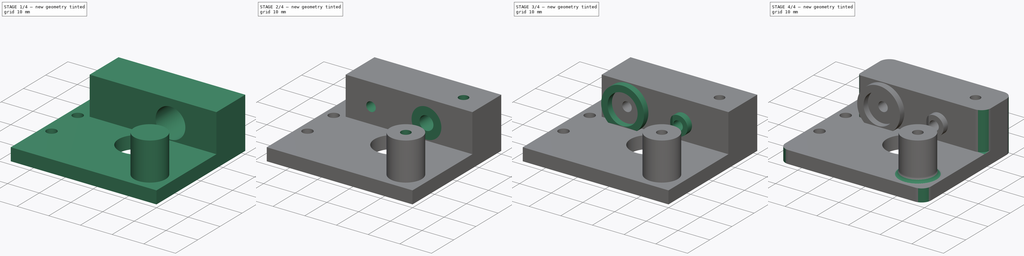
[diagram: build sequence overview — one tinted view per stage of 4, left to right]
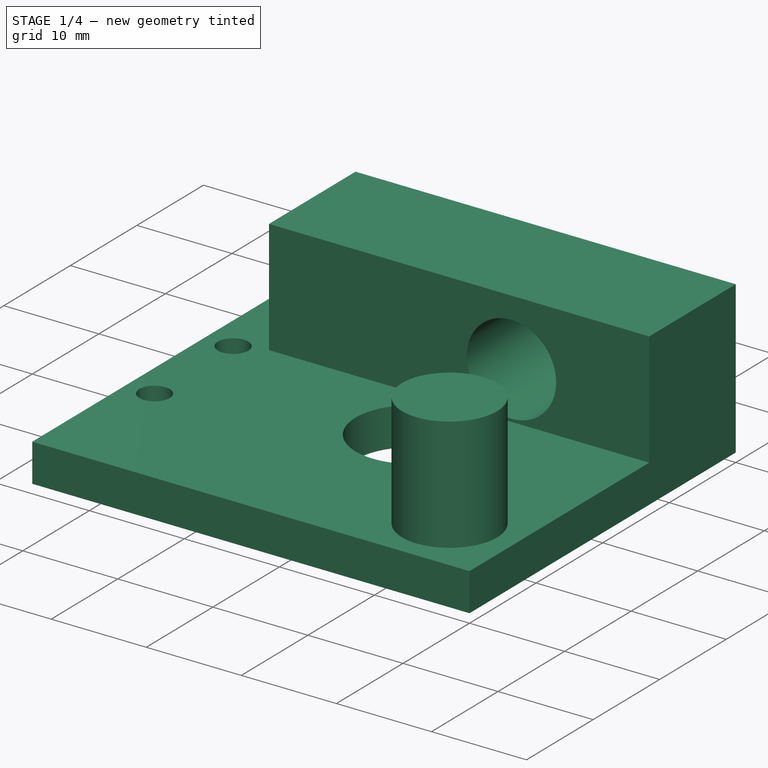
[diagram: stage 1 of 4 — iso view after this stage's code; geometry added in this stage tinted green]
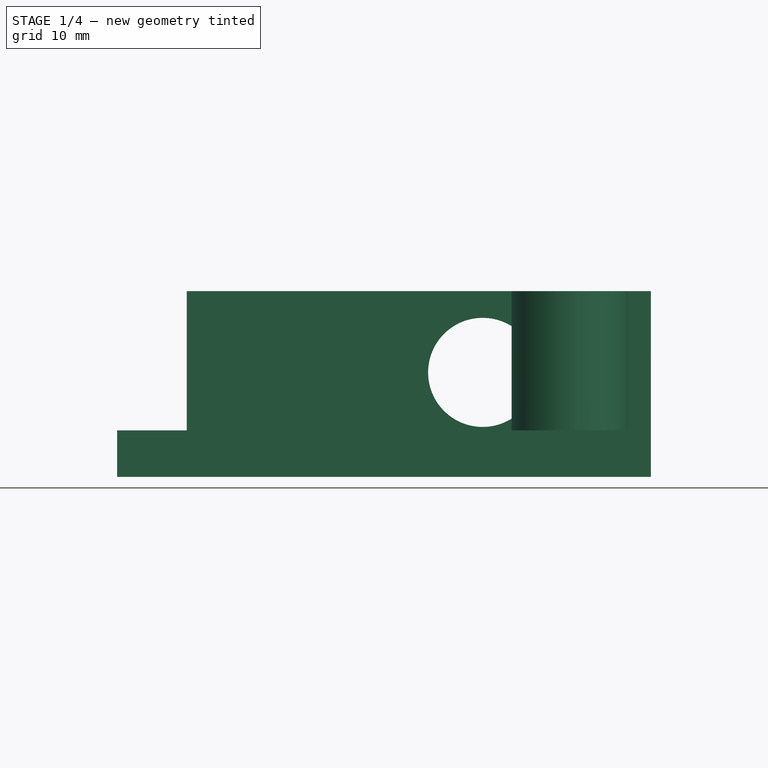
[diagram: stage 1 of 4 — front view after this stage's code; geometry added in this stage tinted green]
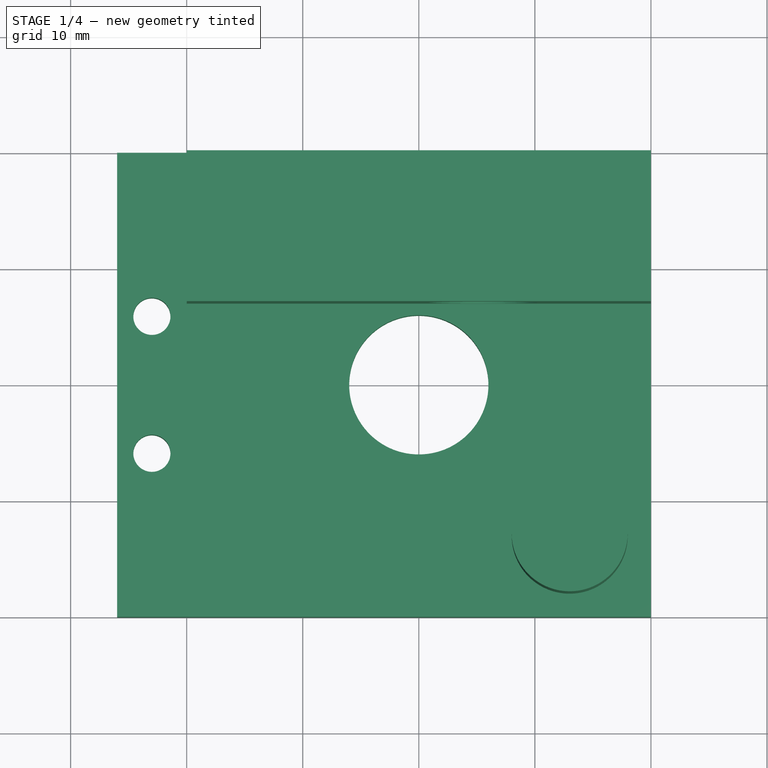
[diagram: stage 1 of 4 — top view after this stage's code; geometry added in this stage tinted green]
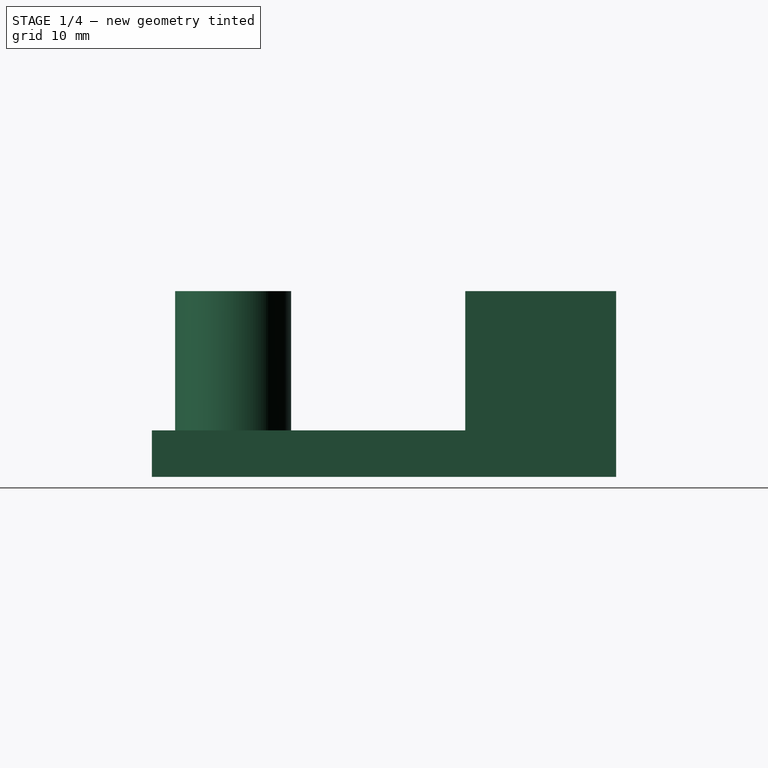
[diagram: stage 1 of 4 — right view after this stage's code; geometry added in this stage tinted green]
FCSTD DOCUMENT  (FreeCAD 0.18R14995 (Git))
Label: DriveBase_Tight
License: All rights reserved
LicenseURL: http://en.wikipedia.org/wiki/All_rights_reserved
objects: Sketcher::SketchObject×9, PartDesign::Pad×5, PartDesign::Pocket×4, PartDesign::Fillet×3, PartDesign::Plane×1, PartDesign::Body×1, App::Part×1
note: 32 computed .brp shape members not serialized (recipe doc carries the construction recipe); baked Part::Feature solids carry a one-line shape summary decoded from their .brp

FEATURE [Sketcher::SketchObject] Sketch  label="DB_BaseSketch"
  MapMode = 5
  Support = -> [XY_Plane001]
  sketch-geometry (13):
    g0: LineSegment StartX=0 StartY=20 StartZ=0 EndX=-26 EndY=20 EndZ=0
    g1: LineSegment StartX=-26 StartY=20 StartZ=0 EndX=-26 EndY=0 EndZ=0
    g2: LineSegment StartX=-26 StartY=0 StartZ=0 EndX=-26 EndY=-20 EndZ=0
    g3: LineSegment StartX=-26 StartY=-20 StartZ=0 EndX=0 EndY=-20 EndZ=0
    g4: LineSegment StartX=0 StartY=-20 StartZ=0 EndX=20 EndY=-20 EndZ=0
    g5: LineSegment StartX=20 StartY=-20 StartZ=0 EndX=20 EndY=0 EndZ=0
    g6: LineSegment StartX=20 StartY=0 StartZ=0 EndX=20 EndY=20 EndZ=0
    g7: LineSegment StartX=20 StartY=20 StartZ=0 EndX=0 EndY=20 EndZ=0
    g8: LineSegment [constr] StartX=-23 StartY=8.9 StartZ=0 EndX=-26 EndY=8.9 EndZ=0
    g9: LineSegment [constr] StartX=-23 StartY=8.9 StartZ=0 EndX=-23 EndY=5.9 EndZ=0
    g10: Circle CenterX=-23 CenterY=5.9 CenterZ=0 NormalX=0 NormalY=0 NormalZ=1 AngleXU=0 Radius=1.6
    g11: Circle CenterX=-23 CenterY=-5.9 CenterZ=0 NormalX=0 NormalY=0 NormalZ=1 AngleXU=0 Radius=1.6
    g12: Circle CenterX=0 CenterY=0 CenterZ=0 NormalX=0 NormalY=0 NormalZ=1 AngleXU=0 Radius=6
  constraints (37):
    c: PointOnObject(g0,g-2)
    c: Horizontal(g0)
    c: Coincident(g1,g0)
    c: PointOnObject(g1,g-1)
    c: Vertical(g1)
    c: Coincident(g2,g1)
    c: Vertical(g2)
    c: Coincident(g3,g2)
    c: PointOnObject(g3,g-2)
    c: Horizontal(g3)
    c: Coincident(g4,g3)
    c: Horizontal(g4)
    c: Coincident(g5,g4)
    c: PointOnObject(g5,g-1)
    c: Vertical(g5)
    c: Coincident(g6,g5)
    c: Vertical(g6)
    c: Coincident(g7,g6)
    c: Coincident(g7,g0)
    c: Horizontal(g7)
    c: Distance(g6,g4) = 40
    c: Distance(g7) = 20
    c: Distance(g0) = 26
    c: PointOnObject(g8,g1)
    c: Horizontal(g8)
    c: Distance(g8) = 3
    c: Distance(g8,g1) = 8.9
    c: Coincident(g9,g8)
    c: Vertical(g9)
    c: Coincident(g10,g9)
    c: Equal(g9,g8)
    c: Symmetric(g11,g10,g-1)
    c: Equal(g10,g11)
    c: Radius(g10) = 1.6
    c: Equal(g6,g5)
    c: Coincident(g12,g-1)
    c: Radius(g12) = 6
FEATURE [PartDesign::Pad] Pad  label="DB_BasePad"
  Length = 4
  Length2 = 100
  Profile = -> Sketch
  Reversed = true
  Type = 0
FEATURE [Sketcher::SketchObject] Sketch001  label="DB_TopLipSketch"
  ExternalGeometry = -> [Pad]
  MapMode = 5
  Support = -> [XY_Plane001]
  sketch-geometry (10):
    g0: LineSegment StartX=0 StartY=20 StartZ=0 EndX=20 EndY=20 EndZ=0
    g1: LineSegment StartX=20 StartY=20 StartZ=0 EndX=20 EndY=7 EndZ=0
    g2: LineSegment StartX=20 StartY=7 StartZ=0 EndX=0 EndY=7 EndZ=0
    g3: LineSegment StartX=0 StartY=20 StartZ=0 EndX=-20 EndY=20 EndZ=0
    g4: LineSegment StartX=-20 StartY=20 StartZ=0 EndX=-20 EndY=7 EndZ=0
    g5: LineSegment StartX=-20 StartY=7 StartZ=0 EndX=0 EndY=7 EndZ=0
    g6: Circle [constr] CenterX=0 CenterY=0 CenterZ=0 NormalX=0 NormalY=0 NormalZ=1 AngleXU=0 Radius=7
    g7: LineSegment [constr] StartX=20 StartY=-20 StartZ=0 EndX=13 EndY=-20 EndZ=0
    g8: LineSegment [constr] StartX=13 StartY=-20 StartZ=0 EndX=13 EndY=-13 EndZ=0
    g9: Circle CenterX=13 CenterY=-13 CenterZ=0 NormalX=0 NormalY=0 NormalZ=1 AngleXU=0 Radius=5
  constraints (27):
    c: Horizontal(g0)
    c: Coincident(g1,g0)
    c: Vertical(g1)
    c: Coincident(g2,g1)
    c: PointOnObject(g2,g-2)
    c: Horizontal(g2)
    c: Horizontal(g3)
    c: Coincident(g4,g3)
    c: Vertical(g4)
    c: Coincident(g5,g4)
    c: Horizontal(g5)
    c: Coincident(g5,g2)
    c: Equal(g3,g0)
    c: Distance(g3,g0) = 40
    c: Coincident(g3,g0)
    c: Coincident(g0,g-3)
    c: Coincident(g6,g-1)
    c: PointOnObject(g2,g6)
    c: Radius(g6) = 7
    c: Coincident(g7,g-4)
    c: Horizontal(g7)
    c: Coincident(g8,g7)
    c: Vertical(g8)
    c: Equal(g7,g8)
    c: Distance(g7) = 7
    c: Coincident(g9,g8)
    c: Radius(g9) = 5
FEATURE [PartDesign::Pad] Pad001  label="DB_TopLipPad"
  BaseFeature = -> Pad
  Length = 12
  Length2 = 100
  Profile = -> Sketch001
  Type = 0
FEATURE [PartDesign::Plane] DatumPlane  label="DB_TopLipPlane"
  Length = 52.3624
  MapMode = 6
  Placement = pos=(0,7,0) rot=(1,0,0;1.5708rad)
  ResizeMode = 0
  Support = -> [Pad001]
  Width = 28.3624
FEATURE [Sketcher::SketchObject] Sketch002  label="DB_FittingHoleSketch"
  MapMode = 5
  Placement = pos=(0,7,0) rot=(1,0,0;1.5708rad)
  Support = -> [DatumPlane]
  sketch-geometry (3):
    g0: Circle CenterX=5.5 CenterY=5 CenterZ=0 NormalX=0 NormalY=0 NormalZ=1 AngleXU=0 Radius=4.7
    g1: LineSegment [constr] StartX=5.5 StartY=5 StartZ=0 EndX=5.5 EndY=0 EndZ=0
    g2: LineSegment [constr] StartX=5.5 StartY=5 StartZ=0 EndX=0 EndY=5 EndZ=0
  constraints (9):
    c: Coincident(g1,g0)
    c: PointOnObject(g1,g-1)
    c: Coincident(g2,g0)
    c: PointOnObject(g2,g-2)
    c: Horizontal(g2)
    c: Vertical(g1)
    c: Distance(g2) = 5.5
    c: Radius(g0) = 4.7
    c: Distance(g1) = 5
FEATURE [PartDesign::Pocket] Pocket  label="DB_FittingHolePocket"
  BaseFeature = -> Pad001
  Length = 5
  Length2 = 100
  Profile = -> Sketch002
  Type = 1
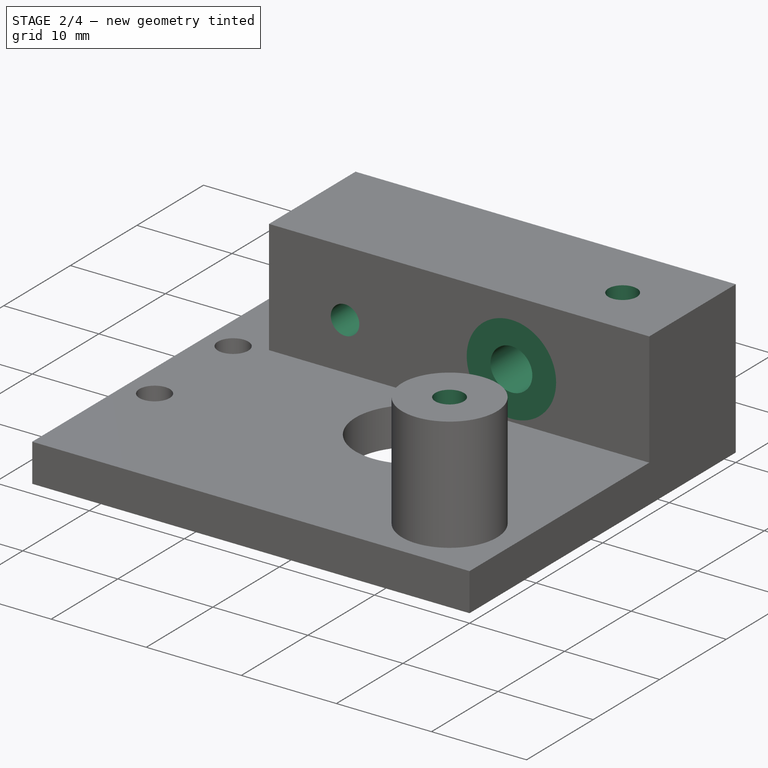
[diagram: stage 2 of 4 — iso view after this stage's code; geometry added in this stage tinted green]
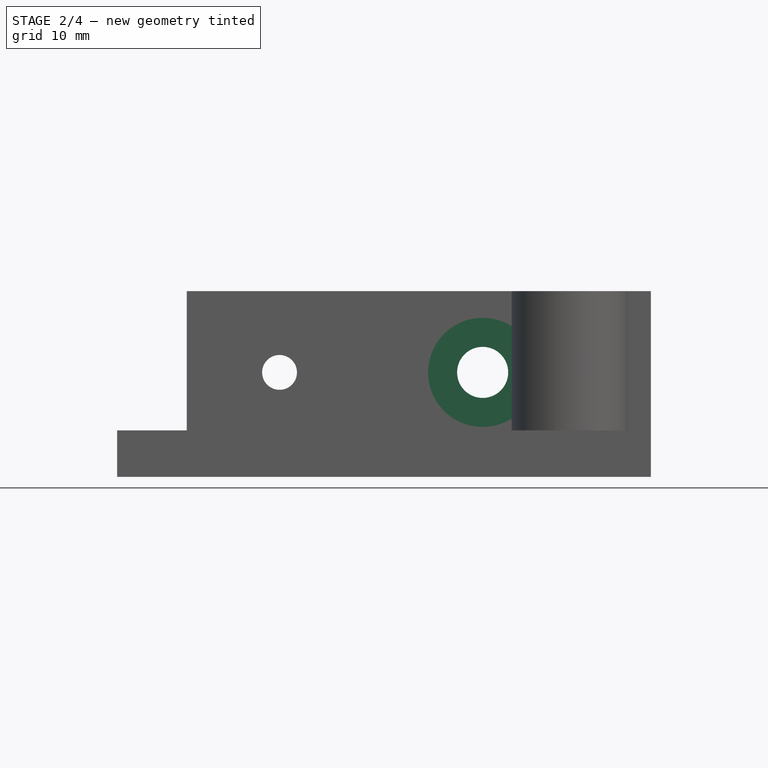
[diagram: stage 2 of 4 — front view after this stage's code; geometry added in this stage tinted green]
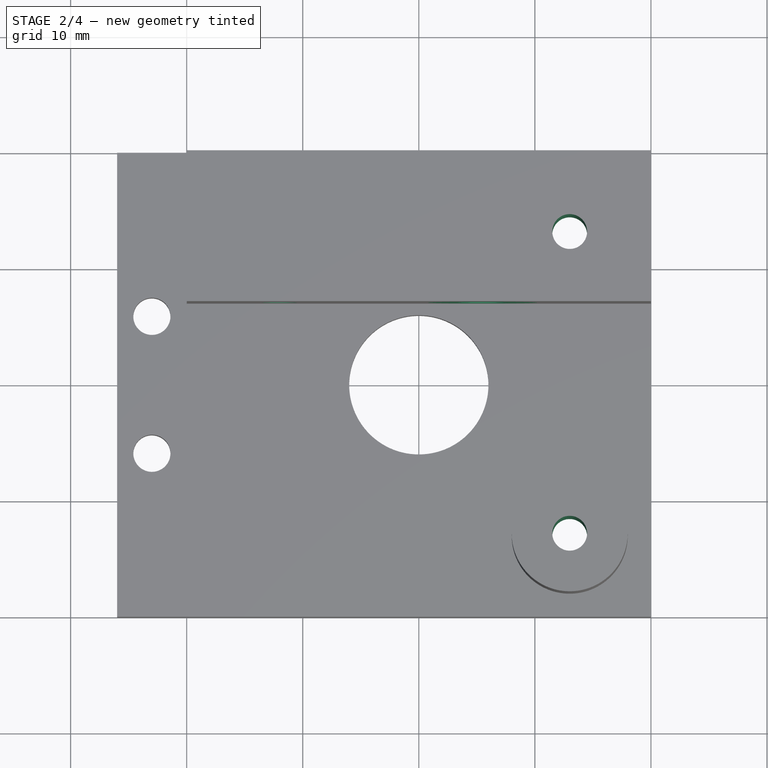
[diagram: stage 2 of 4 — top view after this stage's code; geometry added in this stage tinted green]
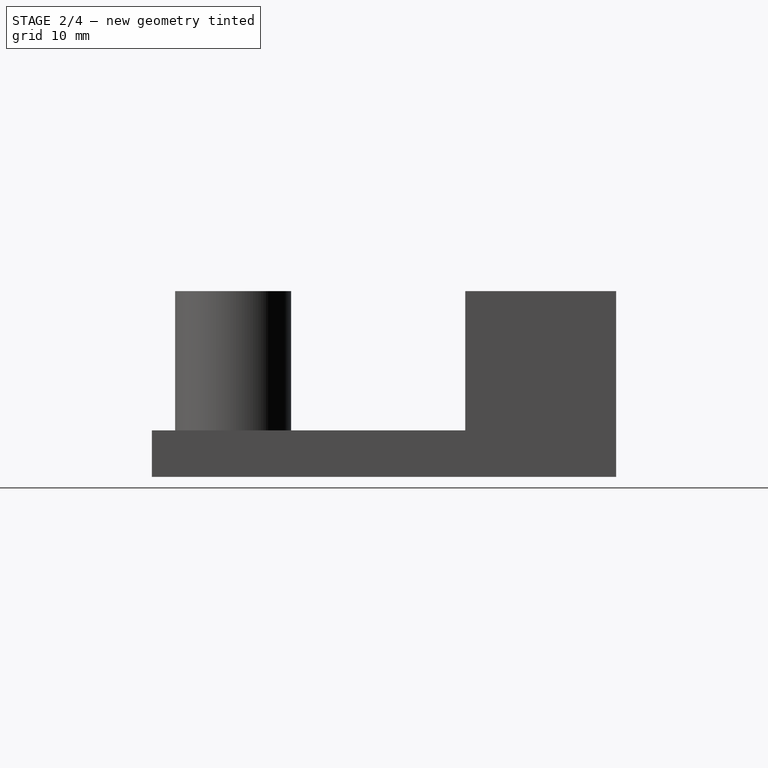
[diagram: stage 2 of 4 — right view after this stage's code; geometry added in this stage tinted green]
FEATURE [Sketcher::SketchObject] Sketch003  label="DB_SpringNotchSketch"
  ExternalGeometry = -> [Pocket]
  MapMode = 5
  Placement = pos=(0,7,0) rot=(1,0,0;1.5708rad)
  Support = -> [DatumPlane]
  sketch-geometry (6):
    g0: Circle CenterX=-12 CenterY=5 CenterZ=0 NormalX=0 NormalY=0 NormalZ=1 AngleXU=0 Radius=4.75
    g1: LineSegment [constr] StartX=-12 StartY=5 StartZ=0 EndX=-12 EndY=0 EndZ=0
    g2: LineSegment [constr] StartX=-12 StartY=5 StartZ=0 EndX=-12 EndY=12 EndZ=0
    g3: LineSegment [constr] StartX=-20 StartY=12 StartZ=0 EndX=-12 EndY=12 EndZ=0
    g4: ArcOfCircle CenterX=-12 CenterY=5 CenterZ=0 NormalX=0 NormalY=0 NormalZ=1 AngleXU=0 Radius=6.75 StartAngle=5.44901 EndAngle=10.259
    g5: LineSegment StartX=-16.5346 StartY=1e-12 StartZ=0 EndX=-7.46541 EndY=1e-12 EndZ=0
  constraints (17):
    c: Radius(g0) = 4.75
    c: Coincident(g1,g0)
    c: PointOnObject(g1,g-1)
    c: Vertical(g1)
    c: Coincident(g2,g0)
    c: Vertical(g2)
    c: Coincident(g3,g-3)
    c: Coincident(g3,g2)
    c: Horizontal(g3)
    c: Distance(g3) = 8
    c: Distance(g1) = 5
    c: Coincident(g4,g0)
    c: PointOnObject(g4,g-1)
    c: PointOnObject(g4,g-1)
    c: Coincident(g5,g4)
    c: Coincident(g5,g4)
    c: Radius(g4) = 6.75
FEATURE [Sketcher::SketchObject] Sketch004  label="DB_SpringScrewSketch"
  ExternalGeometry = -> [Sketch003]
  MapMode = 5
  Placement = pos=(0,7,0) rot=(1,0,0;1.5708rad)
  Support = -> [DatumPlane]
  sketch-geometry (1):
    g0: Circle CenterX=-12 CenterY=5 CenterZ=0 NormalX=0 NormalY=0 NormalZ=1 AngleXU=0 Radius=1.5
  constraints (2):
    c: Coincident(g0,g-3)
    c: Radius(g0) = 1.5
FEATURE [PartDesign::Pocket] Pocket002  label="DB_SpringScrewPocket"
  BaseFeature = -> Pocket
  Length = 5
  Length2 = 100
  Profile = -> Sketch004
  Type = 1
FEATURE [Sketcher::SketchObject] Sketch005  label="DB_LipsClampingScrewsSketch"
  ExternalGeometry = -> [Sketch001]
  MapMode = 5
  Support = -> [XY_Plane001]
  sketch-geometry (4):
    g0: Circle CenterX=13 CenterY=-13 CenterZ=0 NormalX=0 NormalY=0 NormalZ=1 AngleXU=0 Radius=1.5
    g1: LineSegment [constr] StartX=20 StartY=20 StartZ=0 EndX=13 EndY=20 EndZ=0
    g2: LineSegment [constr] StartX=13 StartY=20 StartZ=0 EndX=13 EndY=13 EndZ=0
    g3: Circle CenterX=13 CenterY=13 CenterZ=0 NormalX=0 NormalY=0 NormalZ=1 AngleXU=0 Radius=1.5
  constraints (10):
    c: Coincident(g0,g-3)
    c: Radius(g0) = 1.5
    c: Coincident(g1,g-4)
    c: PointOnObject(g1,g-4)
    c: Coincident(g2,g1)
    c: Vertical(g2)
    c: Equal(g1,g2)
    c: Distance(g1) = 7
    c: Coincident(g3,g2)
    c: Radius(g3) = 1.5
FEATURE [PartDesign::Pocket] Pocket003  label="DB_LipsClampingScrewsPocket"
  BaseFeature = -> Pocket002
  Length = 5
  Length2 = 100
  Midplane = true
  Profile = -> Sketch005
  Type = 1
FEATURE [Sketcher::SketchObject] Sketch006  label="DB_FittingTubeHoleSketch"
  ExternalGeometry = -> [Sketch002]
  MapMode = 5
  Placement = pos=(0,7,0) rot=(1,0,0;1.5708rad)
  Support = -> [DatumPlane]
  sketch-geometry (2):
    g0: Circle CenterX=5.5 CenterY=5 CenterZ=0 NormalX=0 NormalY=0 NormalZ=1 AngleXU=0 Radius=4.7
    g1: Circle CenterX=5.5 CenterY=5 CenterZ=0 NormalX=0 NormalY=0 NormalZ=1 AngleXU=0 Radius=2.2
  constraints (4):
    c: Coincident(g0,g-3)
    c: Coincident(g1,g0)
    c: Equal(g0,g-3)
    c: Radius(g1) = 2.2
FEATURE [PartDesign::Pad] Pad002  label="DB_FittingTubeHolePad"
  BaseFeature = -> Pocket003
  Length = 6
  Length2 = 100
  Profile = -> Sketch006
  Reversed = true
  Type = 0
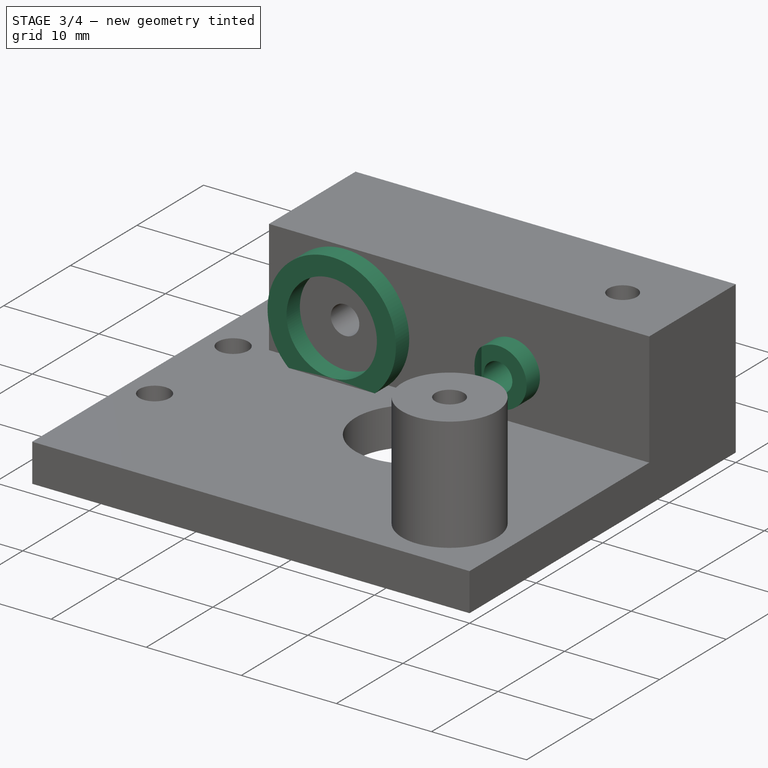
[diagram: stage 3 of 4 — iso view after this stage's code; geometry added in this stage tinted green]
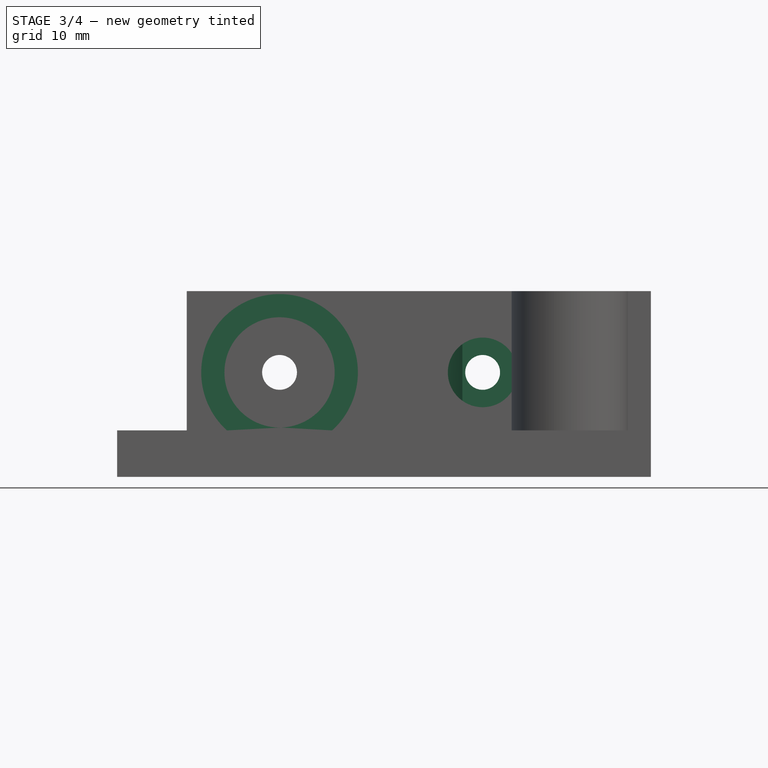
[diagram: stage 3 of 4 — front view after this stage's code; geometry added in this stage tinted green]
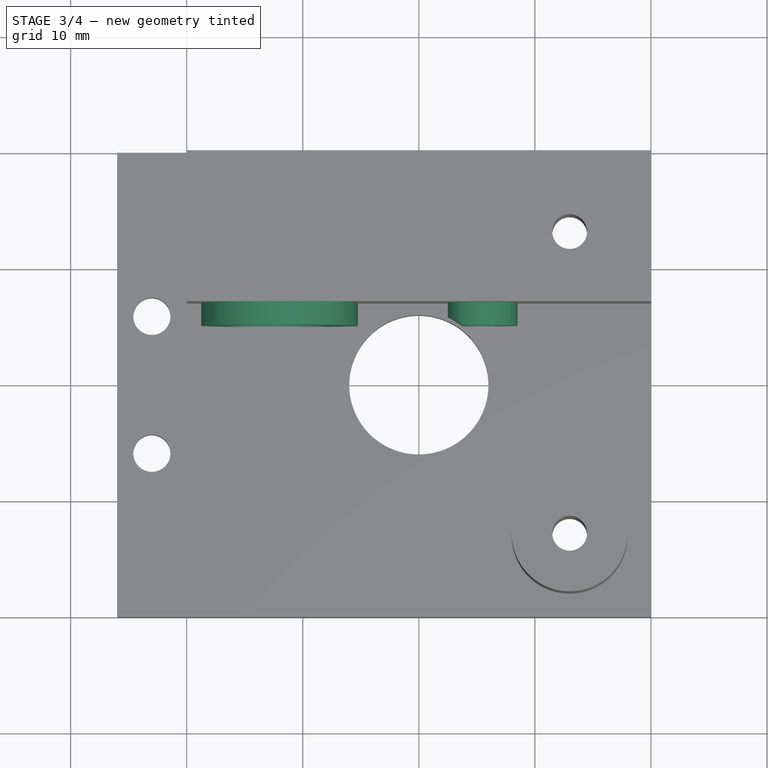
[diagram: stage 3 of 4 — top view after this stage's code; geometry added in this stage tinted green]
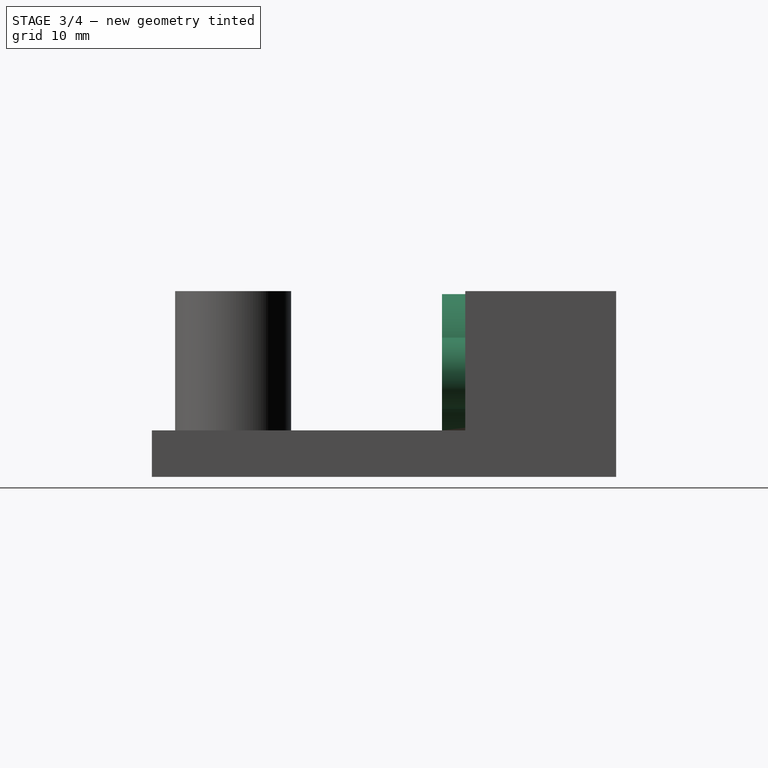
[diagram: stage 3 of 4 — right view after this stage's code; geometry added in this stage tinted green]
FEATURE [Sketcher::SketchObject] Sketch007  label="DB_FittingTubeLimiterSketch"
  ExternalGeometry = -> [Sketch002]
  MapMode = 5
  Placement = pos=(0,7,0) rot=(1,0,0;1.5708rad)
  Support = -> [DatumPlane]
  sketch-geometry (2):
    g0: Circle CenterX=5.5 CenterY=5 CenterZ=0 NormalX=0 NormalY=0 NormalZ=1 AngleXU=0 Radius=1.5
    g1: Circle CenterX=5.5 CenterY=5 CenterZ=0 NormalX=0 NormalY=0 NormalZ=1 AngleXU=0 Radius=3
  constraints (4):
    c: Coincident(g0,g-3)
    c: Radius(g0) = 1.5
    c: Coincident(g1,g0)
    c: Radius(g1) = 3
FEATURE [PartDesign::Pad] Pad003  label="DB_FittingTubeLimiterPad"
  BaseFeature = -> Pad002
  Length = 2
  Length2 = 2
  Profile = -> Sketch007
  Type = 4
FEATURE [PartDesign::Pad] Pad004  label="DB_SpringNotchPad"
  BaseFeature = -> Pad003
  Length = 2
  Length2 = 100
  Profile = -> Sketch003
  Type = 0
FEATURE [Sketcher::SketchObject] Sketch008  label="DB_FittingTubeCutSketch"
  ExternalGeometry = -> [Sketch]
  MapMode = 5
  Support = -> [XY_Plane001]
  sketch-geometry (2):
    g0: Circle CenterX=0 CenterY=0 CenterZ=0 NormalX=0 NormalY=0 NormalZ=1 AngleXU=0 Radius=6.25
    g1: LineSegment [constr] StartX=6 StartY=0 StartZ=0 EndX=6.25 EndY=0 EndZ=0
  constraints (6):
    c: Coincident(g0,g-1)
    c: PointOnObject(g1,g-3)
    c: PointOnObject(g1,g0)
    c: Horizontal(g1)
    c: PointOnObject(g1,g-1)
    c: Distance(g1) = 0.25
FEATURE [PartDesign::Pocket] Pocket004  label="DB_FittingTubeCutPocket"
  BaseFeature = -> Pad004
  Length = 5
  Length2 = 100
  Profile = -> Sketch008
  Reversed = true
  Type = 1
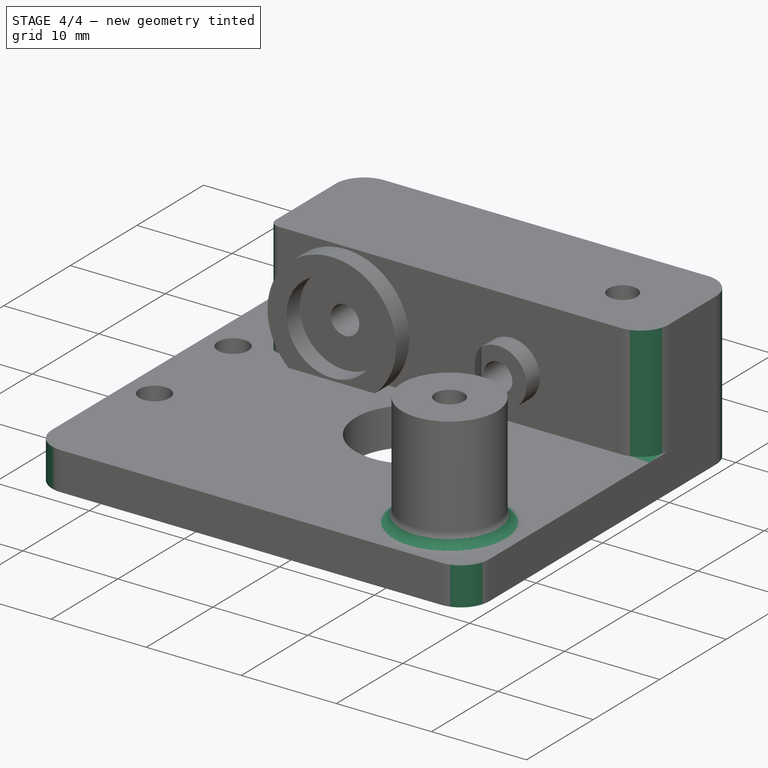
[diagram: stage 4 of 4 — iso view after this stage's code; geometry added in this stage tinted green]
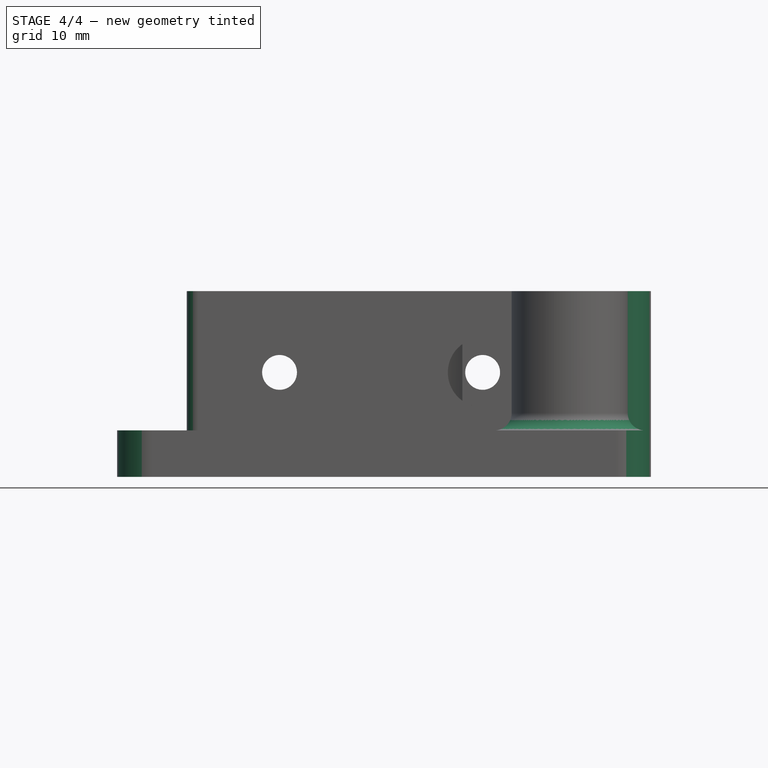
[diagram: stage 4 of 4 — front view after this stage's code; geometry added in this stage tinted green]
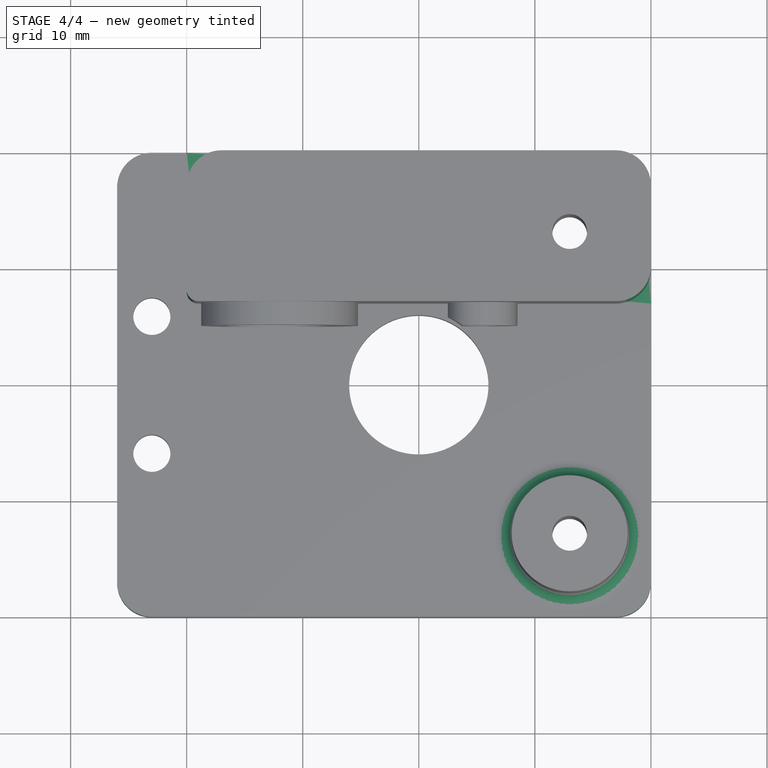
[diagram: stage 4 of 4 — top view after this stage's code; geometry added in this stage tinted green]
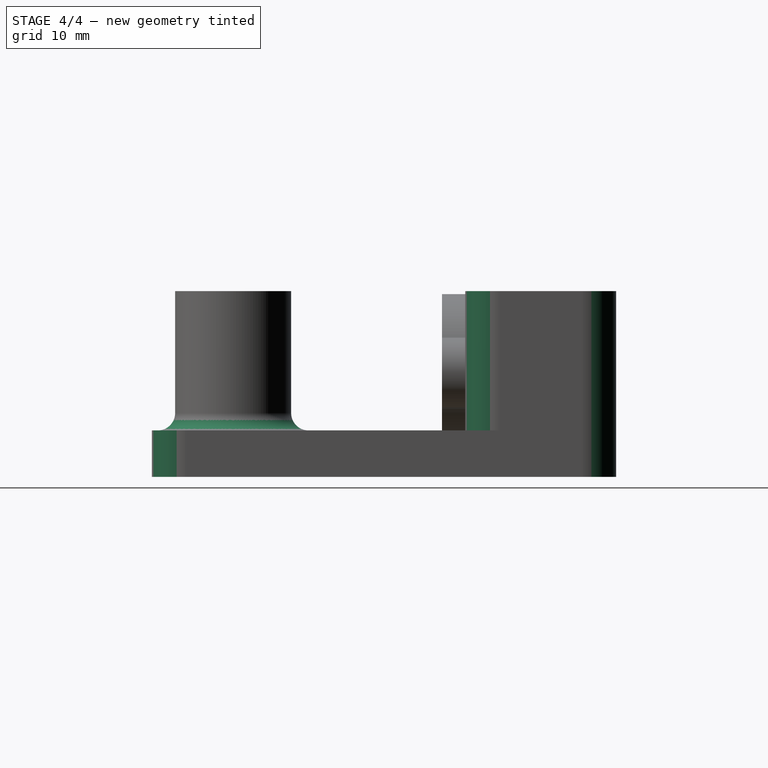
[diagram: stage 4 of 4 — right view after this stage's code; geometry added in this stage tinted green]
FEATURE [PartDesign::Fillet] Fillet  label="DB_BottomLipClampingFillet"
  Base = -> Pocket004 [Edge54]
  BaseFeature = -> Pocket004
  Radius = 1.5
FEATURE [PartDesign::Fillet] Fillet001  label="DB_BaseFillet1"
  Base = -> Fillet [Edge34,Edge39,Edge48,Edge27,Edge43,Edge21]
  BaseFeature = -> Fillet
  Radius = 3
FEATURE [PartDesign::Fillet] Fillet002  label="DB_BaseFillet2"
  Base = -> Fillet001 [Edge28]
  BaseFeature = -> Fillet001
  Radius = 1
FEATURE [PartDesign::Body] Body  label="DriveBaseBody"
  Group = -> [Sketch,Pad,Sketch001,Pad001,Sketch002,DatumPlane,Pocket,Sketch003,Sketch004,Pocket002,Sketch005,Pocket003,Sketch006,Pad002,Sketch007,Pad003,Pad004,Sketch008,Pocket004,Fillet,Fillet001,Fillet002]
  Origin = -> Origin001
  Tip = -> Fillet002
FEATURE [App::Part] Part  label="DriveBasePart"
  Group = -> [Body]
  License = CC BY 3.0
  LicenseURL = http://creativecommons.org/licenses/by/3.0/
  Origin = -> Origin
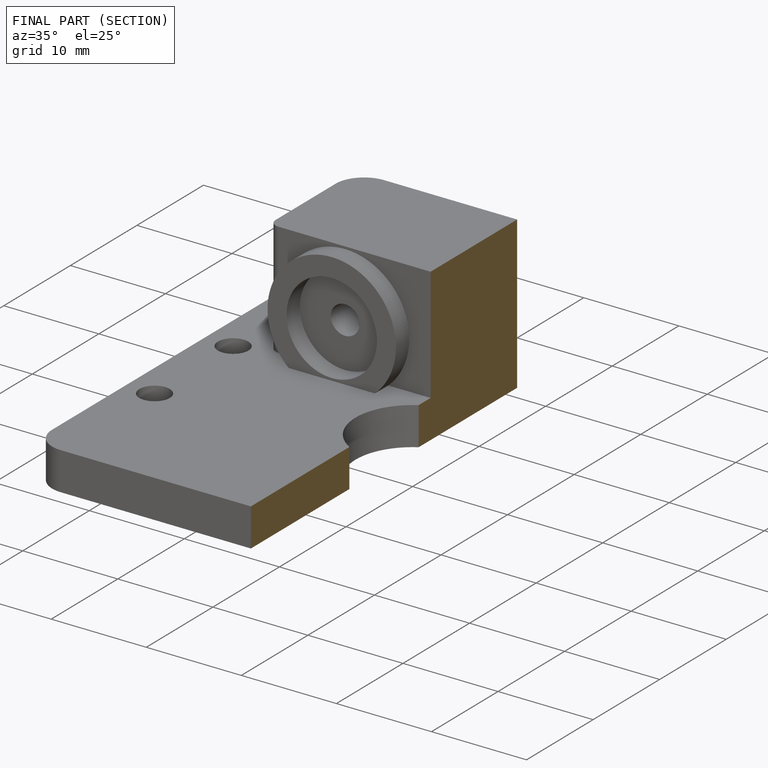
[diagram: finished part — half-section view (interior)]
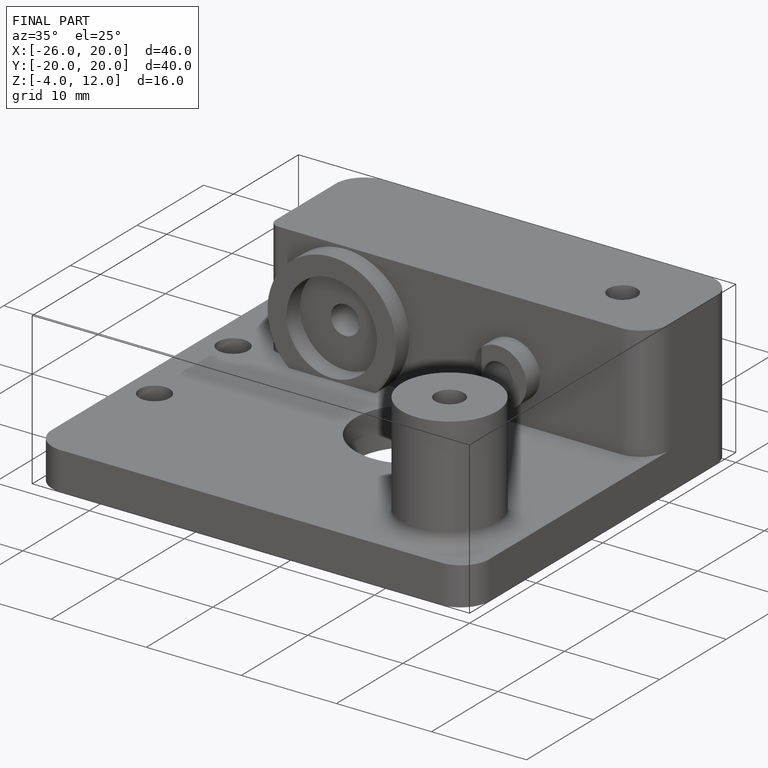
[diagram: finished part — iso view with bounding-box wireframe]
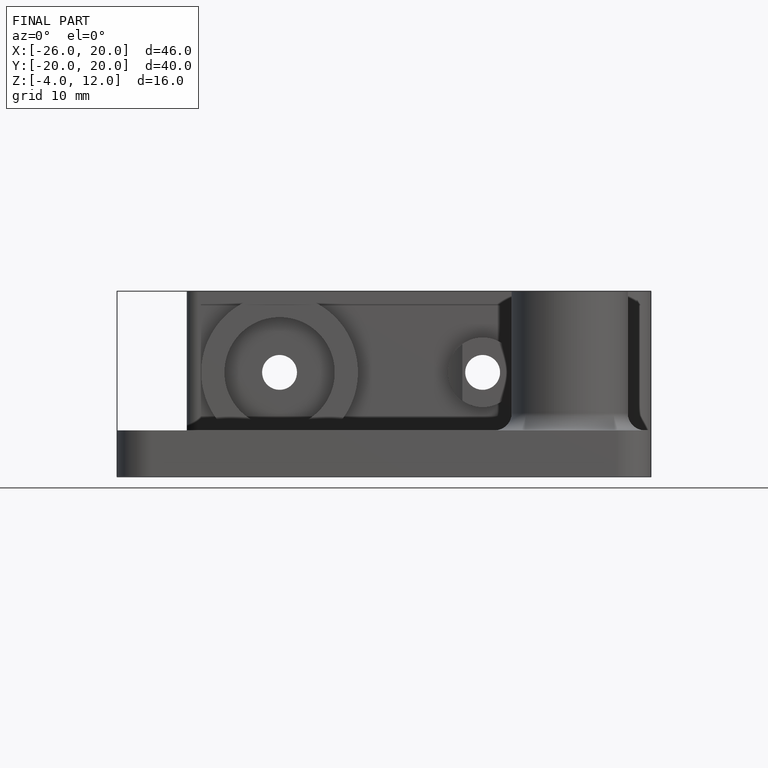
[diagram: finished part — front view with bounding-box wireframe]
